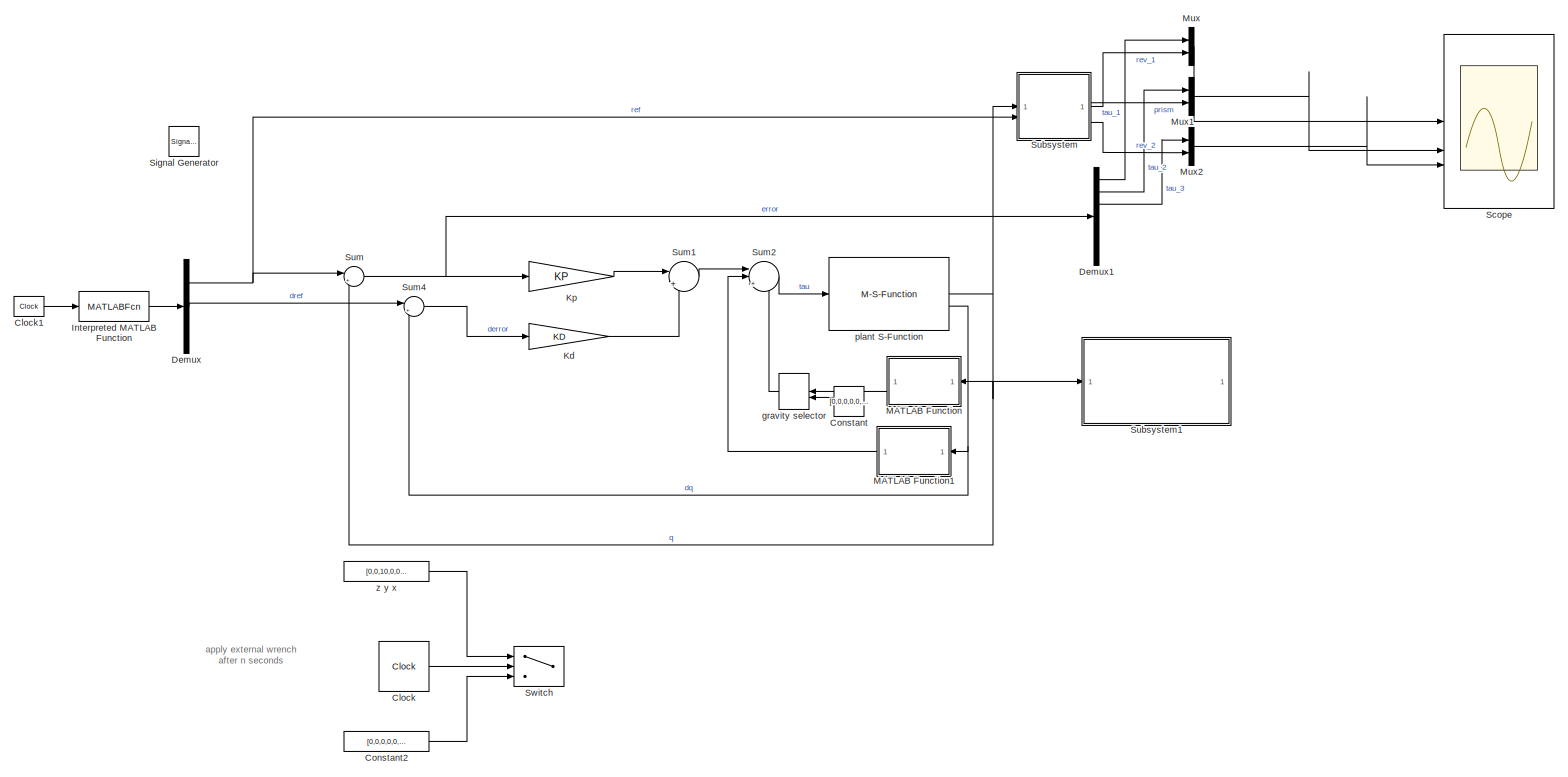
[diagram: root canvas - part 1/1, most of the canvas]
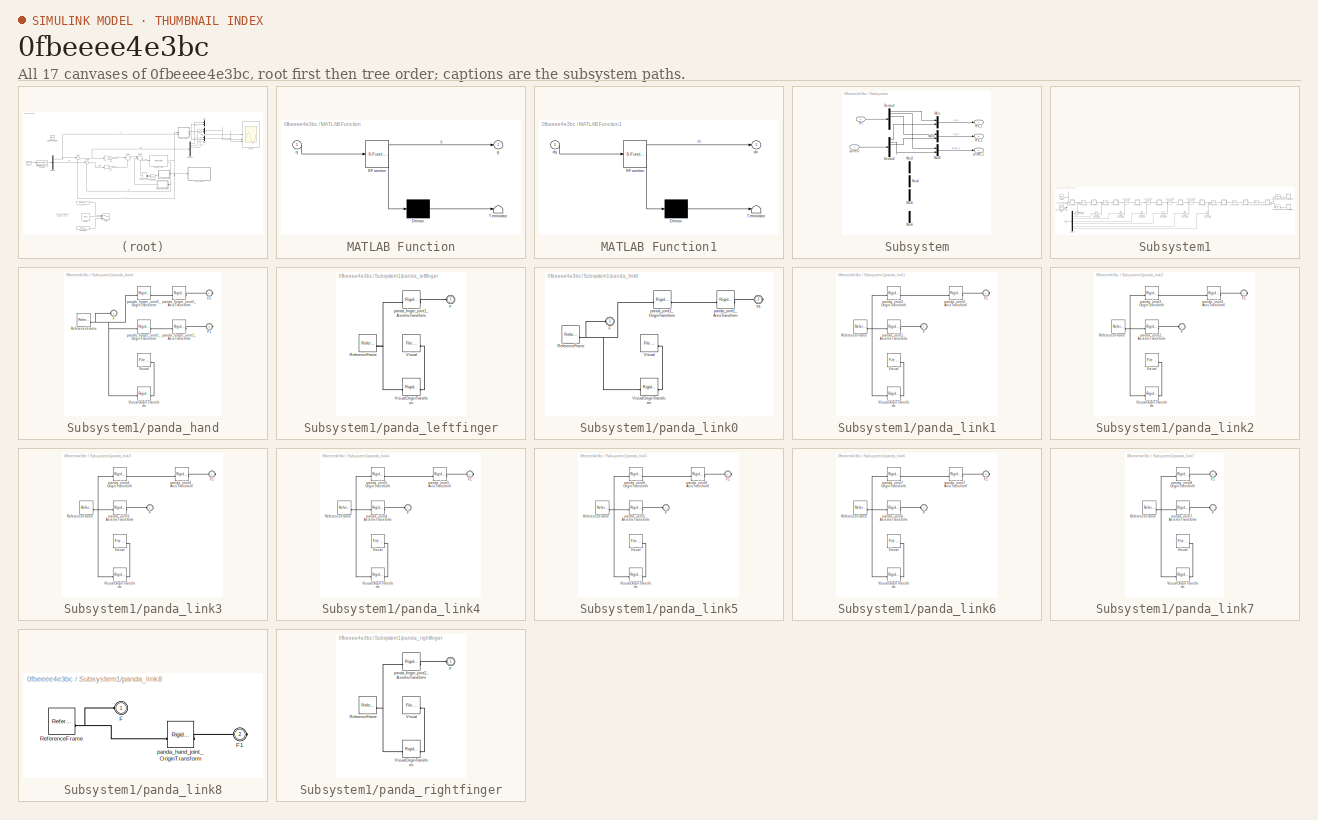
[diagram: thumbnail index - all 17 canvases of the model, root first then tree order]
MODEL slx_0fbeeee4e3bc
KIND model
CONFIG AbsTol = auto
CONFIG EnableMultiTasking = off
CONFIG FixedStep = 0.0001
CONFIG MaxStep = 0.1
CONFIG MinStep = auto
CONFIG RelTol = auto
CONFIG SampleTimeConstraint = Unconstrained
CONFIG SolverName = VariableStepAuto
CONFIG StartTime = 0.0
CONFIG StopTime = 10
WORKSPACE source: mxarray member
WORKSPACE Var = 0
BLOCK [Clock] Clock
  DisplayTime = on
BLOCK [Clock] Clock1
  DisplayTime = on
BLOCK [Constant] Constant
  NameLocation = top
  Value = [0,0,0,0,0,0,0]'
BLOCK [Constant] Constant2
  Value = [0,0,0,0,0,0]'
BLOCK [Demux] Demux
  Outputs = 3
BLOCK [Demux] Demux1
  Commented = on
  Outputs = 7
BLOCK [MATLABFcn] Interpreted MATLAB Function
  MATLABFcn = traj(u)
BLOCK [Gain] Kd
  Gain = KD
BLOCK [Gain] Kp
  Gain = KP
BLOCK [SubSystem] MATLAB Function
  ErrorFcn = Stateflow.Translate.translate
  NameLocation = top
  PermitHierarchicalResolution = ExplicitOnly
  SFBlockType = MATLAB Function
  TreatAsAtomicUnit = on
BLOCK [Demux] MATLAB Function/ Demux 
  Outputs = 1
BLOCK [S-Function] MATLAB Function/ SFunction 
  EnableBusSupport = on
  FunctionName = sf_sfun
  PortCounts = [1 2]
  SFcnIsStateOwnerBlock = off
  SFunctionDeploymentMode = off
  Tag = Stateflow S-Function 2
BLOCK [Terminator] MATLAB Function/ Terminator 
BLOCK [Outport] MATLAB Function/g
BLOCK [Inport] MATLAB Function/q
BLOCK [SubSystem] MATLAB Function1
  ErrorFcn = Stateflow.Translate.translate
  NameLocation = top
  PermitHierarchicalResolution = ExplicitOnly
  SFBlockType = MATLAB Function
  TreatAsAtomicUnit = on
BLOCK [Demux] MATLAB Function1/ Demux 
  Outputs = 1
BLOCK [S-Function] MATLAB Function1/ SFunction 
  EnableBusSupport = on
  FunctionName = sf_sfun
  PortCounts = [1 2]
  SFcnIsStateOwnerBlock = off
  SFunctionDeploymentMode = off
  Tag = Stateflow S-Function 1
BLOCK [Terminator] MATLAB Function1/ Terminator 
BLOCK [Inport] MATLAB Function1/dq
BLOCK [Outport] MATLAB Function1/dx
BLOCK [Mux] Mux
  Commented = on
  DisplayOption = bar
  Inputs = 2
BLOCK [Mux] Mux1
  Commented = on
  DisplayOption = bar
  Inputs = 2
BLOCK [Mux] Mux2
  Commented = on
  DisplayOption = bar
  Inputs = 2
BLOCK [Scope] Scope
  Commented = on
  Floating = off
  NumInputPorts = 7
  ScopeSpecificationString = Simulink.scopes.TimeScopeBlockCfg('CurrentConfiguration', extmgr.ConfigurationSet(extmgr.Configuration('Core','General UI',true),extmgr.Configuration('Core','Source UI',true),extmgr.Configuration('Sources','WiredSimulink',true),extmgr.Configuration('Visuals','Time Domain',true,'SerializedDisplays',{struct('MinYLimReal','-0.33672','MaxYLimReal','1.70349','YLabelReal','','MinYLimMag','0.00000','MaxY...<+7091ch>
BLOCK [SignalGenerator] Signal Generator
  Amplitude = [1,0.2,2]
  Frequency = [0.5,1,1]
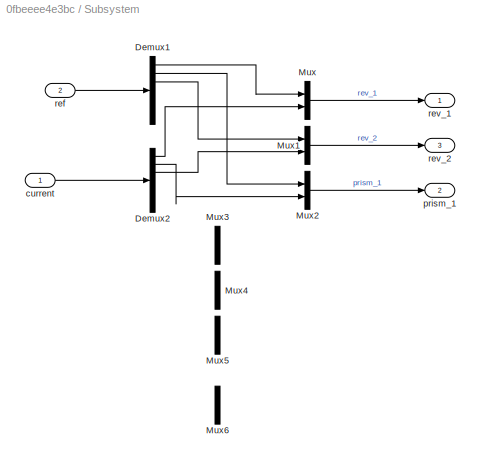
BLOCK [SubSystem] Subsystem
  Commented = on
BLOCK [Demux] Subsystem/Demux1
  Outputs = 7
BLOCK [Demux] Subsystem/Demux2
  Outputs = 7
BLOCK [Mux] Subsystem/Mux
  DisplayOption = bar
  Inputs = 2
BLOCK [Mux] Subsystem/Mux1
  DisplayOption = bar
  Inputs = 2
BLOCK [Mux] Subsystem/Mux2
  DisplayOption = bar
  Inputs = 2
BLOCK [Mux] Subsystem/Mux3
  DisplayOption = bar
  Inputs = 2
BLOCK [Mux] Subsystem/Mux4
  DisplayOption = bar
  Inputs = 2
BLOCK [Mux] Subsystem/Mux5
  DisplayOption = bar
  Inputs = 2
BLOCK [Mux] Subsystem/Mux6
  DisplayOption = bar
  Inputs = 2
BLOCK [Inport] Subsystem/current
BLOCK [Outport] Subsystem/prism_1
  Port = 2
BLOCK [Inport] Subsystem/ref
  Port = 2
BLOCK [Outport] Subsystem/rev_1
BLOCK [Outport] Subsystem/rev_2
  Port = 3
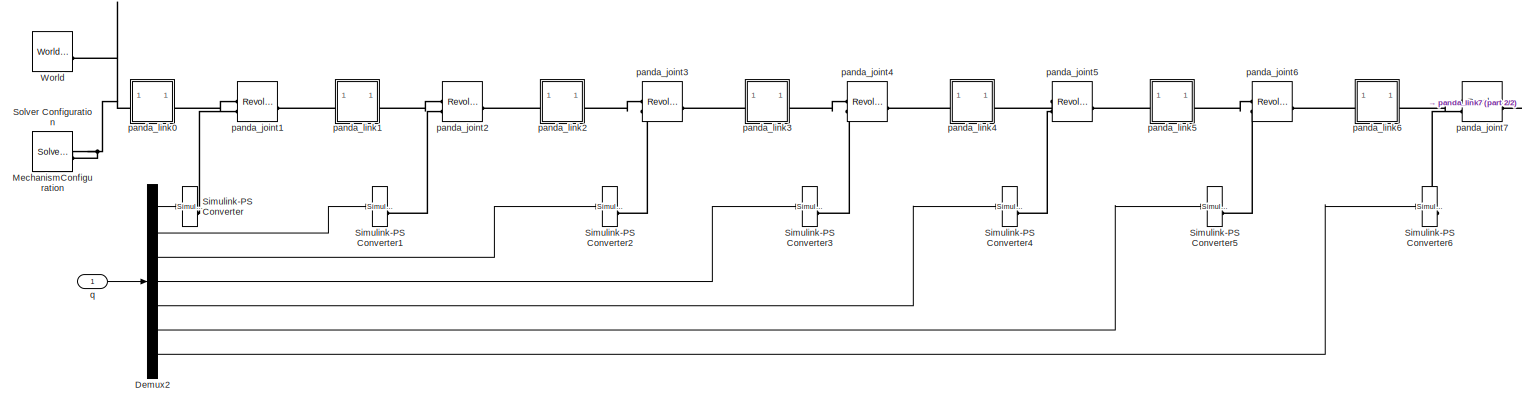
[diagram: Subsystem1 - part 1/2, center side, full height]
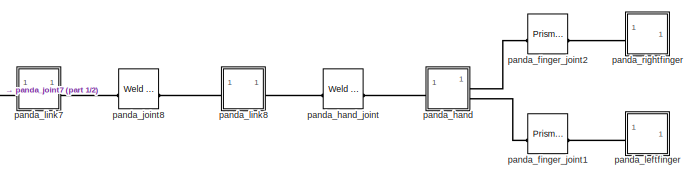
[diagram: Subsystem1 - part 2/2, top right region]
BLOCK [SubSystem] Subsystem1
BLOCK [Demux] Subsystem1/Demux2
  Outputs = 7
BLOCK [Reference] Subsystem1/MechanismConfiguration  REF=sm_lib/Utilities/Mechanism
Configuration
  SourceBlock = sm_lib/Utilities/Mechanism\nConfiguration
  SourceType = Mechanism\nConfiguration
BLOCK [Reference] Subsystem1/Simulink-PS Converter  REF=nesl_utility/Simulink-PS
Converter
  SourceBlock = nesl_utility/Simulink-PS\nConverter
  SourceType = Simulink-PS\nConverter
BLOCK [Reference] Subsystem1/Simulink-PS Converter1  REF=nesl_utility/Simulink-PS
Converter
  SourceBlock = nesl_utility/Simulink-PS\nConverter
  SourceType = Simulink-PS\nConverter
BLOCK [Reference] Subsystem1/Simulink-PS Converter2  REF=nesl_utility/Simulink-PS
Converter
  SourceBlock = nesl_utility/Simulink-PS\nConverter
  SourceType = Simulink-PS\nConverter
BLOCK [Reference] Subsystem1/Simulink-PS Converter3  REF=nesl_utility/Simulink-PS
Converter
  SourceBlock = nesl_utility/Simulink-PS\nConverter
  SourceType = Simulink-PS\nConverter
BLOCK [Reference] Subsystem1/Simulink-PS Converter4  REF=nesl_utility/Simulink-PS
Converter
  SourceBlock = nesl_utility/Simulink-PS\nConverter
  SourceType = Simulink-PS\nConverter
BLOCK [Reference] Subsystem1/Simulink-PS Converter5  REF=nesl_utility/Simulink-PS
Converter
  SourceBlock = nesl_utility/Simulink-PS\nConverter
  SourceType = Simulink-PS\nConverter
BLOCK [Reference] Subsystem1/Simulink-PS Converter6  REF=nesl_utility/Simulink-PS
Converter
  SourceBlock = nesl_utility/Simulink-PS\nConverter
  SourceType = Simulink-PS\nConverter
BLOCK [Reference] Subsystem1/Solver Configuration  REF=nesl_utility/Solver
Configuration
  SourceBlock = nesl_utility/Solver\nConfiguration
  SourceType = Solver\nConfiguration
BLOCK [Reference] Subsystem1/World  REF=sm_lib/Frames and
Transforms/World Frame
  SourceBlock = sm_lib/Frames and\nTransforms/World Frame
  SourceType = World Frame
BLOCK [Reference] Subsystem1/panda_finger_joint1  REF=sm_lib/Joints/Prismatic
Joint
  Commented = on
  SourceBlock = sm_lib/Joints/Prismatic\nJoint
  SourceType = Prismatic\nJoint
BLOCK [Reference] Subsystem1/panda_finger_joint2  REF=sm_lib/Joints/Prismatic
Joint
  Commented = on
  SourceBlock = sm_lib/Joints/Prismatic\nJoint
  SourceType = Prismatic\nJoint
BLOCK [SubSystem] Subsystem1/panda_hand
  Commented = on
BLOCK [PMIOPort] Subsystem1/panda_hand/F
  Side = Left
BLOCK [PMIOPort] Subsystem1/panda_hand/F1
  Port = 3
  Side = Right
BLOCK [PMIOPort] Subsystem1/panda_hand/F2
  Port = 2
  Side = Right
BLOCK [Reference] Subsystem1/panda_hand/ReferenceFrame  REF=sm_lib/Frames and
Transforms/Reference
Frame
  SourceBlock = sm_lib/Frames and\nTransforms/Reference\nFrame
  SourceType = Reference\nFrame
BLOCK [Reference] Subsystem1/panda_hand/Visual  REF=sm_lib/Body Elements/File Solid
  SourceBlock = sm_lib/Body Elements/File Solid
  SourceType = File Solid
BLOCK [Reference] Subsystem1/panda_hand/VisualOriginTransform  REF=sm_lib/Frames and
Transforms/Rigid
Transform
  SourceBlock = sm_lib/Frames and\nTransforms/Rigid\nTransform
  SourceType = Rigid\nTransform
BLOCK [Reference] Subsystem1/panda_hand/panda_finger_joint1_AxisTransform  REF=sm_lib/Frames and
Transforms/Rigid
Transform
  SourceBlock = sm_lib/Frames and\nTransforms/Rigid\nTransform
  SourceType = Rigid\nTransform
BLOCK [Reference] Subsystem1/panda_hand/panda_finger_joint1_OriginTransform  REF=sm_lib/Frames and
Transforms/Rigid
Transform
  SourceBlock = sm_lib/Frames and\nTransforms/Rigid\nTransform
  SourceType = Rigid\nTransform
BLOCK [Reference] Subsystem1/panda_hand/panda_finger_joint2_AxisTransform  REF=sm_lib/Frames and
Transforms/Rigid
Transform
  SourceBlock = sm_lib/Frames and\nTransforms/Rigid\nTransform
  SourceType = Rigid\nTransform
BLOCK [Reference] Subsystem1/panda_hand/panda_finger_joint2_OriginTransform  REF=sm_lib/Frames and
Transforms/Rigid
Transform
  SourceBlock = sm_lib/Frames and\nTransforms/Rigid\nTransform
  SourceType = Rigid\nTransform
BLOCK [Reference] Subsystem1/panda_hand_joint  REF=sm_lib/Joints/Weld Joint
  Commented = on
  SourceBlock = sm_lib/Joints/Weld Joint
  SourceType = Weld Joint
BLOCK [Reference] Subsystem1/panda_joint1  REF=sm_lib/Joints/Revolute Joint
  SourceBlock = sm_lib/Joints/Revolute Joint
  SourceType = Revolute Joint
BLOCK [Reference] Subsystem1/panda_joint2  REF=sm_lib/Joints/Revolute Joint
  SourceBlock = sm_lib/Joints/Revolute Joint
  SourceType = Revolute Joint
BLOCK [Reference] Subsystem1/panda_joint3  REF=sm_lib/Joints/Revolute Joint
  SourceBlock = sm_lib/Joints/Revolute Joint
  SourceType = Revolute Joint
BLOCK [Reference] Subsystem1/panda_joint4  REF=sm_lib/Joints/Revolute Joint
  SourceBlock = sm_lib/Joints/Revolute Joint
  SourceType = Revolute Joint
BLOCK [Reference] Subsystem1/panda_joint5  REF=sm_lib/Joints/Revolute Joint
  SourceBlock = sm_lib/Joints/Revolute Joint
  SourceType = Revolute Joint
BLOCK [Reference] Subsystem1/panda_joint6  REF=sm_lib/Joints/Revolute Joint
  SourceBlock = sm_lib/Joints/Revolute Joint
  SourceType = Revolute Joint
BLOCK [Reference] Subsystem1/panda_joint7  REF=sm_lib/Joints/Revolute Joint
  SourceBlock = sm_lib/Joints/Revolute Joint
  SourceType = Revolute Joint
BLOCK [Reference] Subsystem1/panda_joint8  REF=sm_lib/Joints/Weld Joint
  Commented = on
  SourceBlock = sm_lib/Joints/Weld Joint
  SourceType = Weld Joint
BLOCK [SubSystem] Subsystem1/panda_leftfinger
  Commented = on
BLOCK [PMIOPort] Subsystem1/panda_leftfinger/F
  Side = Left
BLOCK [Reference] Subsystem1/panda_leftfinger/ReferenceFrame  REF=sm_lib/Frames and
Transforms/Reference
Frame
  SourceBlock = sm_lib/Frames and\nTransforms/Reference\nFrame
  SourceType = Reference\nFrame
BLOCK [Reference] Subsystem1/panda_leftfinger/Visual  REF=sm_lib/Body Elements/File Solid
  SourceBlock = sm_lib/Body Elements/File Solid
  SourceType = File Solid
BLOCK [Reference] Subsystem1/panda_leftfinger/VisualOriginTransform  REF=sm_lib/Frames and
Transforms/Rigid
Transform
  SourceBlock = sm_lib/Frames and\nTransforms/Rigid\nTransform
  SourceType = Rigid\nTransform
BLOCK [Reference] Subsystem1/panda_leftfinger/panda_finger_joint1_AxisInvTransform  REF=sm_lib/Frames and
Transforms/Rigid
Transform
  SourceBlock = sm_lib/Frames and\nTransforms/Rigid\nTransform
  SourceType = Rigid\nTransform
BLOCK [SubSystem] Subsystem1/panda_link0
BLOCK [PMIOPort] Subsystem1/panda_link0/F
  Side = Left
BLOCK [PMIOPort] Subsystem1/panda_link0/F1
  Port = 2
  Side = Right
BLOCK [Reference] Subsystem1/panda_link0/ReferenceFrame  REF=sm_lib/Frames and
Transforms/Reference
Frame
  SourceBlock = sm_lib/Frames and\nTransforms/Reference\nFrame
  SourceType = Reference\nFrame
BLOCK [Reference] Subsystem1/panda_link0/Visual  REF=sm_lib/Body Elements/File Solid
  SourceBlock = sm_lib/Body Elements/File Solid
  SourceType = File Solid
BLOCK [Reference] Subsystem1/panda_link0/VisualOriginTransform  REF=sm_lib/Frames and
Transforms/Rigid
Transform
  SourceBlock = sm_lib/Frames and\nTransforms/Rigid\nTransform
  SourceType = Rigid\nTransform
BLOCK [Reference] Subsystem1/panda_link0/panda_joint1_AxisTransform  REF=sm_lib/Frames and
Transforms/Rigid
Transform
  SourceBlock = sm_lib/Frames and\nTransforms/Rigid\nTransform
  SourceType = Rigid\nTransform
BLOCK [Reference] Subsystem1/panda_link0/panda_joint1_OriginTransform  REF=sm_lib/Frames and
Transforms/Rigid
Transform
  SourceBlock = sm_lib/Frames and\nTransforms/Rigid\nTransform
  SourceType = Rigid\nTransform
BLOCK [SubSystem] Subsystem1/panda_link1
BLOCK [PMIOPort] Subsystem1/panda_link1/F
  Side = Left
BLOCK [PMIOPort] Subsystem1/panda_link1/F1
  Port = 2
  Side = Right
BLOCK [Reference] Subsystem1/panda_link1/ReferenceFrame  REF=sm_lib/Frames and
Transforms/Reference
Frame
  SourceBlock = sm_lib/Frames and\nTransforms/Reference\nFrame
  SourceType = Reference\nFrame
BLOCK [Reference] Subsystem1/panda_link1/Visual  REF=sm_lib/Body Elements/File Solid
  SourceBlock = sm_lib/Body Elements/File Solid
  SourceType = File Solid
BLOCK [Reference] Subsystem1/panda_link1/VisualOriginTransform  REF=sm_lib/Frames and
Transforms/Rigid
Transform
  SourceBlock = sm_lib/Frames and\nTransforms/Rigid\nTransform
  SourceType = Rigid\nTransform
BLOCK [Reference] Subsystem1/panda_link1/panda_joint1_AxisInvTransform  REF=sm_lib/Frames and
Transforms/Rigid
Transform
  SourceBlock = sm_lib/Frames and\nTransforms/Rigid\nTransform
  SourceType = Rigid\nTransform
BLOCK [Reference] Subsystem1/panda_link1/panda_joint2_AxisTransform  REF=sm_lib/Frames and
Transforms/Rigid
Transform
  SourceBlock = sm_lib/Frames and\nTransforms/Rigid\nTransform
  SourceType = Rigid\nTransform
BLOCK [Reference] Subsystem1/panda_link1/panda_joint2_OriginTransform  REF=sm_lib/Frames and
Transforms/Rigid
Transform
  SourceBlock = sm_lib/Frames and\nTransforms/Rigid\nTransform
  SourceType = Rigid\nTransform
BLOCK [SubSystem] Subsystem1/panda_link2
BLOCK [PMIOPort] Subsystem1/panda_link2/F
  Side = Left
BLOCK [PMIOPort] Subsystem1/panda_link2/F1
  Port = 2
  Side = Right
BLOCK [Reference] Subsystem1/panda_link2/ReferenceFrame  REF=sm_lib/Frames and
Transforms/Reference
Frame
  SourceBlock = sm_lib/Frames and\nTransforms/Reference\nFrame
  SourceType = Reference\nFrame
BLOCK [Reference] Subsystem1/panda_link2/Visual  REF=sm_lib/Body Elements/File Solid
  SourceBlock = sm_lib/Body Elements/File Solid
  SourceType = File Solid
BLOCK [Reference] Subsystem1/panda_link2/VisualOriginTransform  REF=sm_lib/Frames and
Transforms/Rigid
Transform
  SourceBlock = sm_lib/Frames and\nTransforms/Rigid\nTransform
  SourceType = Rigid\nTransform
BLOCK [Reference] Subsystem1/panda_link2/panda_joint2_AxisInvTransform  REF=sm_lib/Frames and
Transforms/Rigid
Transform
  SourceBlock = sm_lib/Frames and\nTransforms/Rigid\nTransform
  SourceType = Rigid\nTransform
BLOCK [Reference] Subsystem1/panda_link2/panda_joint3_AxisTransform  REF=sm_lib/Frames and
Transforms/Rigid
Transform
  SourceBlock = sm_lib/Frames and\nTransforms/Rigid\nTransform
  SourceType = Rigid\nTransform
BLOCK [Reference] Subsystem1/panda_link2/panda_joint3_OriginTransform  REF=sm_lib/Frames and
Transforms/Rigid
Transform
  SourceBlock = sm_lib/Frames and\nTransforms/Rigid\nTransform
  SourceType = Rigid\nTransform
BLOCK [SubSystem] Subsystem1/panda_link3
BLOCK [PMIOPort] Subsystem1/panda_link3/F
  Side = Left
BLOCK [PMIOPort] Subsystem1/panda_link3/F1
  Port = 2
  Side = Right
BLOCK [Reference] Subsystem1/panda_link3/ReferenceFrame  REF=sm_lib/Frames and
Transforms/Reference
Frame
  SourceBlock = sm_lib/Frames and\nTransforms/Reference\nFrame
  SourceType = Reference\nFrame
BLOCK [Reference] Subsystem1/panda_link3/Visual  REF=sm_lib/Body Elements/File Solid
  SourceBlock = sm_lib/Body Elements/File Solid
  SourceType = File Solid
BLOCK [Reference] Subsystem1/panda_link3/VisualOriginTransform  REF=sm_lib/Frames and
Transforms/Rigid
Transform
  SourceBlock = sm_lib/Frames and\nTransforms/Rigid\nTransform
  SourceType = Rigid\nTransform
BLOCK [Reference] Subsystem1/panda_link3/panda_joint3_AxisInvTransform  REF=sm_lib/Frames and
Transforms/Rigid
Transform
  SourceBlock = sm_lib/Frames and\nTransforms/Rigid\nTransform
  SourceType = Rigid\nTransform
BLOCK [Reference] Subsystem1/panda_link3/panda_joint4_AxisTransform  REF=sm_lib/Frames and
Transforms/Rigid
Transform
  SourceBlock = sm_lib/Frames and\nTransforms/Rigid\nTransform
  SourceType = Rigid\nTransform
BLOCK [Reference] Subsystem1/panda_link3/panda_joint4_OriginTransform  REF=sm_lib/Frames and
Transforms/Rigid
Transform
  SourceBlock = sm_lib/Frames and\nTransforms/Rigid\nTransform
  SourceType = Rigid\nTransform
BLOCK [SubSystem] Subsystem1/panda_link4
BLOCK [PMIOPort] Subsystem1/panda_link4/F
  Side = Left
BLOCK [PMIOPort] Subsystem1/panda_link4/F1
  Port = 2
  Side = Right
BLOCK [Reference] Subsystem1/panda_link4/ReferenceFrame  REF=sm_lib/Frames and
Transforms/Reference
Frame
  SourceBlock = sm_lib/Frames and\nTransforms/Reference\nFrame
  SourceType = Reference\nFrame
BLOCK [Reference] Subsystem1/panda_link4/Visual  REF=sm_lib/Body Elements/File Solid
  SourceBlock = sm_lib/Body Elements/File Solid
  SourceType = File Solid
BLOCK [Reference] Subsystem1/panda_link4/VisualOriginTransform  REF=sm_lib/Frames and
Transforms/Rigid
Transform
  SourceBlock = sm_lib/Frames and\nTransforms/Rigid\nTransform
  SourceType = Rigid\nTransform
BLOCK [Reference] Subsystem1/panda_link4/panda_joint4_AxisInvTransform  REF=sm_lib/Frames and
Transforms/Rigid
Transform
  SourceBlock = sm_lib/Frames and\nTransforms/Rigid\nTransform
  SourceType = Rigid\nTransform
BLOCK [Reference] Subsystem1/panda_link4/panda_joint5_AxisTransform  REF=sm_lib/Frames and
Transforms/Rigid
Transform
  SourceBlock = sm_lib/Frames and\nTransforms/Rigid\nTransform
  SourceType = Rigid\nTransform
BLOCK [Reference] Subsystem1/panda_link4/panda_joint5_OriginTransform  REF=sm_lib/Frames and
Transforms/Rigid
Transform
  SourceBlock = sm_lib/Frames and\nTransforms/Rigid\nTransform
  SourceType = Rigid\nTransform
BLOCK [SubSystem] Subsystem1/panda_link5
BLOCK [PMIOPort] Subsystem1/panda_link5/F
  Side = Left
BLOCK [PMIOPort] Subsystem1/panda_link5/F1
  Port = 2
  Side = Right
BLOCK [Reference] Subsystem1/panda_link5/ReferenceFrame  REF=sm_lib/Frames and
Transforms/Reference
Frame
  SourceBlock = sm_lib/Frames and\nTransforms/Reference\nFrame
  SourceType = Reference\nFrame
BLOCK [Reference] Subsystem1/panda_link5/Visual  REF=sm_lib/Body Elements/File Solid
  SourceBlock = sm_lib/Body Elements/File Solid
  SourceType = File Solid
BLOCK [Reference] Subsystem1/panda_link5/VisualOriginTransform  REF=sm_lib/Frames and
Transforms/Rigid
Transform
  SourceBlock = sm_lib/Frames and\nTransforms/Rigid\nTransform
  SourceType = Rigid\nTransform
BLOCK [Reference] Subsystem1/panda_link5/panda_joint5_AxisInvTransform  REF=sm_lib/Frames and
Transforms/Rigid
Transform
  SourceBlock = sm_lib/Frames and\nTransforms/Rigid\nTransform
  SourceType = Rigid\nTransform
BLOCK [Reference] Subsystem1/panda_link5/panda_joint6_AxisTransform  REF=sm_lib/Frames and
Transforms/Rigid
Transform
  SourceBlock = sm_lib/Frames and\nTransforms/Rigid\nTransform
  SourceType = Rigid\nTransform
BLOCK [Reference] Subsystem1/panda_link5/panda_joint6_OriginTransform  REF=sm_lib/Frames and
Transforms/Rigid
Transform
  SourceBlock = sm_lib/Frames and\nTransforms/Rigid\nTransform
  SourceType = Rigid\nTransform
BLOCK [SubSystem] Subsystem1/panda_link6
BLOCK [PMIOPort] Subsystem1/panda_link6/F
  Side = Left
BLOCK [PMIOPort] Subsystem1/panda_link6/F1
  Port = 2
  Side = Right
BLOCK [Reference] Subsystem1/panda_link6/ReferenceFrame  REF=sm_lib/Frames and
Transforms/Reference
Frame
  SourceBlock = sm_lib/Frames and\nTransforms/Reference\nFrame
  SourceType = Reference\nFrame
BLOCK [Reference] Subsystem1/panda_link6/Visual  REF=sm_lib/Body Elements/File Solid
  SourceBlock = sm_lib/Body Elements/File Solid
  SourceType = File Solid
BLOCK [Reference] Subsystem1/panda_link6/VisualOriginTransform  REF=sm_lib/Frames and
Transforms/Rigid
Transform
  SourceBlock = sm_lib/Frames and\nTransforms/Rigid\nTransform
  SourceType = Rigid\nTransform
BLOCK [Reference] Subsystem1/panda_link6/panda_joint6_AxisInvTransform  REF=sm_lib/Frames and
Transforms/Rigid
Transform
  SourceBlock = sm_lib/Frames and\nTransforms/Rigid\nTransform
  SourceType = Rigid\nTransform
BLOCK [Reference] Subsystem1/panda_link6/panda_joint7_AxisTransform  REF=sm_lib/Frames and
Transforms/Rigid
Transform
  SourceBlock = sm_lib/Frames and\nTransforms/Rigid\nTransform
  SourceType = Rigid\nTransform
BLOCK [Reference] Subsystem1/panda_link6/panda_joint7_OriginTransform  REF=sm_lib/Frames and
Transforms/Rigid
Transform
  SourceBlock = sm_lib/Frames and\nTransforms/Rigid\nTransform
  SourceType = Rigid\nTransform
BLOCK [SubSystem] Subsystem1/panda_link7
BLOCK [PMIOPort] Subsystem1/panda_link7/F
  Side = Left
BLOCK [PMIOPort] Subsystem1/panda_link7/F1
  Port = 2
  Side = Right
BLOCK [Reference] Subsystem1/panda_link7/ReferenceFrame  REF=sm_lib/Frames and
Transforms/Reference
Frame
  SourceBlock = sm_lib/Frames and\nTransforms/Reference\nFrame
  SourceType = Reference\nFrame
BLOCK [Reference] Subsystem1/panda_link7/Visual  REF=sm_lib/Body Elements/File Solid
  SourceBlock = sm_lib/Body Elements/File Solid
  SourceType = File Solid
BLOCK [Reference] Subsystem1/panda_link7/VisualOriginTransform  REF=sm_lib/Frames and
Transforms/Rigid
Transform
  SourceBlock = sm_lib/Frames and\nTransforms/Rigid\nTransform
  SourceType = Rigid\nTransform
BLOCK [Reference] Subsystem1/panda_link7/panda_joint7_AxisInvTransform  REF=sm_lib/Frames and
Transforms/Rigid
Transform
  SourceBlock = sm_lib/Frames and\nTransforms/Rigid\nTransform
  SourceType = Rigid\nTransform
BLOCK [Reference] Subsystem1/panda_link7/panda_joint8_OriginTransform  REF=sm_lib/Frames and
Transforms/Rigid
Transform
  SourceBlock = sm_lib/Frames and\nTransforms/Rigid\nTransform
  SourceType = Rigid\nTransform
BLOCK [SubSystem] Subsystem1/panda_link8
  Commented = on
BLOCK [PMIOPort] Subsystem1/panda_link8/F
  Side = Left
BLOCK [PMIOPort] Subsystem1/panda_link8/F1
  Port = 2
  Side = Right
BLOCK [Reference] Subsystem1/panda_link8/ReferenceFrame  REF=sm_lib/Frames and
Transforms/Reference
Frame
  SourceBlock = sm_lib/Frames and\nTransforms/Reference\nFrame
  SourceType = Reference\nFrame
BLOCK [Reference] Subsystem1/panda_link8/panda_hand_joint_OriginTransform  REF=sm_lib/Frames and
Transforms/Rigid
Transform
  SourceBlock = sm_lib/Frames and\nTransforms/Rigid\nTransform
  SourceType = Rigid\nTransform
BLOCK [SubSystem] Subsystem1/panda_rightfinger
  Commented = on
BLOCK [PMIOPort] Subsystem1/panda_rightfinger/F
  Side = Left
BLOCK [Reference] Subsystem1/panda_rightfinger/ReferenceFrame  REF=sm_lib/Frames and
Transforms/Reference
Frame
  SourceBlock = sm_lib/Frames and\nTransforms/Reference\nFrame
  SourceType = Reference\nFrame
BLOCK [Reference] Subsystem1/panda_rightfinger/Visual  REF=sm_lib/Body Elements/File Solid
  SourceBlock = sm_lib/Body Elements/File Solid
  SourceType = File Solid
BLOCK [Reference] Subsystem1/panda_rightfinger/VisualOriginTransform  REF=sm_lib/Frames and
Transforms/Rigid
Transform
  SourceBlock = sm_lib/Frames and\nTransforms/Rigid\nTransform
  SourceType = Rigid\nTransform
BLOCK [Reference] Subsystem1/panda_rightfinger/panda_finger_joint2_AxisInvTransform  REF=sm_lib/Frames and
Transforms/Rigid
Transform
  SourceBlock = sm_lib/Frames and\nTransforms/Rigid\nTransform
  SourceType = Rigid\nTransform
BLOCK [Inport] Subsystem1/q
BLOCK [Sum] Sum
  Inputs = |+-
BLOCK [Sum] Sum1
  Inputs = ||+|+
BLOCK [Sum] Sum2
  Inputs = ||+++
BLOCK [Sum] Sum4
  Inputs = |+-
BLOCK [Switch] Switch
  Criteria = u2 > Threshold
  InputSameDT = off
  SaturateOnIntegerOverflow = off
  Threshold = 5
BLOCK [ManualSwitch] gravity selector
BLOCK [M-S-Function] plant S-Function
  FunctionName = franka_robot_s_function
  Parameters = arg_1,arg_2
BLOCK [Constant] z y x
  Value = [0,0,10,0,0,5]'
ANNOTATION (root): apply external wrench after n seconds
LINE Clock1:1 -> Interpreted MATLAB Function:1
LINE Clock:1 -> Switch:2
LINE Constant2:1 -> Switch:3
LINE Constant:1 -> gravity selector:2
LINE Demux1:1 -> Mux:1
LINE Demux1:2 -> Mux1:1
LINE Demux1:3 -> Mux2:1
NET Demux:1 -> Subsystem:2, Sum:1
LINE Demux:2 -> Sum4:1
LINE Interpreted MATLAB Function:1 -> Demux:1
LINE Kd:1 -> Sum1:2
LINE Kp:1 -> Sum1:1
LINE MATLAB Function1:1 -> Sum2:2
LINE MATLAB Function:1 -> gravity selector:1
LINE Mux1:1 -> Scope:2
LINE Mux2:1 -> Scope:3
LINE Mux:1 -> Scope:1
LINE Subsystem/Demux1:1 -> Subsystem/Mux:1
LINE Subsystem/Demux1:2 -> Subsystem/Mux2:1
LINE Subsystem/Demux1:3 -> Subsystem/Mux1:1
LINE Subsystem/Demux2:1 -> Subsystem/Mux:2
LINE Subsystem/Demux2:2 -> Subsystem/Mux2:2
LINE Subsystem/Demux2:3 -> Subsystem/Mux1:2
LINE Subsystem/Mux1:1 -> Subsystem/rev_2:1
LINE Subsystem/Mux2:1 -> Subsystem/prism_1:1
LINE Subsystem/Mux:1 -> Subsystem/rev_1:1
LINE Subsystem/current:1 -> Subsystem/Demux2:1
LINE Subsystem/ref:1 -> Subsystem/Demux1:1
LINE Subsystem1/Demux2:1 -> Subsystem1/Simulink-PS Converter:1
LINE Subsystem1/Demux2:2 -> Subsystem1/Simulink-PS Converter1:1
LINE Subsystem1/Demux2:3 -> Subsystem1/Simulink-PS Converter2:1
LINE Subsystem1/Demux2:4 -> Subsystem1/Simulink-PS Converter3:1
LINE Subsystem1/Demux2:5 -> Subsystem1/Simulink-PS Converter4:1
LINE Subsystem1/Demux2:6 -> Subsystem1/Simulink-PS Converter5:1
LINE Subsystem1/Demux2:7 -> Subsystem1/Simulink-PS Converter6:1
LINE Subsystem1/q:1 -> Subsystem1/Demux2:1
LINE Subsystem:1 -> Mux:2
LINE Subsystem:2 -> Mux1:2
LINE Subsystem:3 -> Mux2:2
LINE Sum1:1 -> Sum2:1
LINE Sum2:1 -> plant S-Function:1
LINE Sum4:1 -> Kd:1
NET Sum:1 -> Demux1:1, Kp:1
LINE gravity selector:1 -> Sum2:3
NET plant S-Function:1 -> MATLAB Function:1, Subsystem1:1, Subsystem:1, Sum:2
NET plant S-Function:2 -> MATLAB Function1:1, Sum4:2
LINE z y x:1 -> Switch:1
PNET net1: Subsystem1/MechanismConfiguration:RConn1 -- Subsystem1/Solver Configuration:RConn1 -- Subsystem1/World:RConn1 -- Subsystem1/panda_link0:LConn1
PLINE Subsystem1/Simulink-PS Converter1:RConn1 -- Subsystem1/panda_joint2:LConn2
PLINE Subsystem1/Simulink-PS Converter2:RConn1 -- Subsystem1/panda_joint3:LConn2
PLINE Subsystem1/Simulink-PS Converter3:RConn1 -- Subsystem1/panda_joint4:LConn2
PLINE Subsystem1/Simulink-PS Converter4:RConn1 -- Subsystem1/panda_joint5:LConn2
PLINE Subsystem1/Simulink-PS Converter5:RConn1 -- Subsystem1/panda_joint6:LConn2
PLINE Subsystem1/Simulink-PS Converter6:RConn1 -- Subsystem1/panda_joint7:LConn2
PLINE Subsystem1/Simulink-PS Converter:RConn1 -- Subsystem1/panda_joint1:LConn2
PLINE Subsystem1/panda_finger_joint1:LConn1 -- Subsystem1/panda_hand:RConn2
PLINE Subsystem1/panda_finger_joint1:RConn1 -- Subsystem1/panda_leftfinger:LConn1
PLINE Subsystem1/panda_finger_joint2:LConn1 -- Subsystem1/panda_hand:RConn1
PLINE Subsystem1/panda_finger_joint2:RConn1 -- Subsystem1/panda_rightfinger:LConn1
PLINE Subsystem1/panda_hand/F1:RConn1 -- Subsystem1/panda_hand/panda_finger_joint1_AxisTransform:RConn1
PLINE Subsystem1/panda_hand/F2:RConn1 -- Subsystem1/panda_hand/panda_finger_joint2_AxisTransform:RConn1
PNET net2: Subsystem1/panda_hand/F:RConn1 -- Subsystem1/panda_hand/ReferenceFrame:RConn1 -- Subsystem1/panda_hand/VisualOriginTransform:LConn1 -- Subsystem1/panda_hand/panda_finger_joint1_OriginTransform:LConn1 -- Subsystem1/panda_hand/panda_finger_joint2_OriginTransform:LConn1
PLINE Subsystem1/panda_hand/Visual:RConn1 -- Subsystem1/panda_hand/VisualOriginTransform:RConn1
PLINE Subsystem1/panda_hand/panda_finger_joint1_AxisTransform:LConn1 -- Subsystem1/panda_hand/panda_finger_joint1_OriginTransform:RConn1
PLINE Subsystem1/panda_hand/panda_finger_joint2_AxisTransform:LConn1 -- Subsystem1/panda_hand/panda_finger_joint2_OriginTransform:RConn1
PLINE Subsystem1/panda_hand:LConn1 -- Subsystem1/panda_hand_joint:RConn1
PLINE Subsystem1/panda_hand_joint:LConn1 -- Subsystem1/panda_link8:RConn1
PLINE Subsystem1/panda_joint1:LConn1 -- Subsystem1/panda_link0:RConn1
PLINE Subsystem1/panda_joint1:RConn1 -- Subsystem1/panda_link1:LConn1
PLINE Subsystem1/panda_joint2:LConn1 -- Subsystem1/panda_link1:RConn1
PLINE Subsystem1/panda_joint2:RConn1 -- Subsystem1/panda_link2:LConn1
PLINE Subsystem1/panda_joint3:LConn1 -- Subsystem1/panda_link2:RConn1
PLINE Subsystem1/panda_joint3:RConn1 -- Subsystem1/panda_link3:LConn1
PLINE Subsystem1/panda_joint4:LConn1 -- Subsystem1/panda_link3:RConn1
PLINE Subsystem1/panda_joint4:RConn1 -- Subsystem1/panda_link4:LConn1
PLINE Subsystem1/panda_joint5:LConn1 -- Subsystem1/panda_link4:RConn1
PLINE Subsystem1/panda_joint5:RConn1 -- Subsystem1/panda_link5:LConn1
PLINE Subsystem1/panda_joint6:LConn1 -- Subsystem1/panda_link5:RConn1
PLINE Subsystem1/panda_joint6:RConn1 -- Subsystem1/panda_link6:LConn1
PLINE Subsystem1/panda_joint7:LConn1 -- Subsystem1/panda_link6:RConn1
PLINE Subsystem1/panda_joint7:RConn1 -- Subsystem1/panda_link7:LConn1
PLINE Subsystem1/panda_joint8:LConn1 -- Subsystem1/panda_link7:RConn1
PLINE Subsystem1/panda_joint8:RConn1 -- Subsystem1/panda_link8:LConn1
PLINE Subsystem1/panda_leftfinger/F:RConn1 -- Subsystem1/panda_leftfinger/panda_finger_joint1_AxisInvTransform:RConn1
PNET net3: Subsystem1/panda_leftfinger/ReferenceFrame:RConn1 -- Subsystem1/panda_leftfinger/VisualOriginTransform:LConn1 -- Subsystem1/panda_leftfinger/panda_finger_joint1_AxisInvTransform:LConn1
PLINE Subsystem1/panda_leftfinger/Visual:RConn1 -- Subsystem1/panda_leftfinger/VisualOriginTransform:RConn1
PLINE Subsystem1/panda_link0/F1:RConn1 -- Subsystem1/panda_link0/panda_joint1_AxisTransform:RConn1
PNET net4: Subsystem1/panda_link0/F:RConn1 -- Subsystem1/panda_link0/ReferenceFrame:RConn1 -- Subsystem1/panda_link0/VisualOriginTransform:LConn1 -- Subsystem1/panda_link0/panda_joint1_OriginTransform:LConn1
PLINE Subsystem1/panda_link0/Visual:RConn1 -- Subsystem1/panda_link0/VisualOriginTransform:RConn1
PLINE Subsystem1/panda_link0/panda_joint1_AxisTransform:LConn1 -- Subsystem1/panda_link0/panda_joint1_OriginTransform:RConn1
PLINE Subsystem1/panda_link1/F1:RConn1 -- Subsystem1/panda_link1/panda_joint2_AxisTransform:RConn1
PLINE Subsystem1/panda_link1/F:RConn1 -- Subsystem1/panda_link1/panda_joint1_AxisInvTransform:RConn1
PNET net5: Subsystem1/panda_link1/ReferenceFrame:RConn1 -- Subsystem1/panda_link1/VisualOriginTransform:LConn1 -- Subsystem1/panda_link1/panda_joint1_AxisInvTransform:LConn1 -- Subsystem1/panda_link1/panda_joint2_OriginTransform:LConn1
PLINE Subsystem1/panda_link1/Visual:RConn1 -- Subsystem1/panda_link1/VisualOriginTransform:RConn1
PLINE Subsystem1/panda_link1/panda_joint2_AxisTransform:LConn1 -- Subsystem1/panda_link1/panda_joint2_OriginTransform:RConn1
PLINE Subsystem1/panda_link2/F1:RConn1 -- Subsystem1/panda_link2/panda_joint3_AxisTransform:RConn1
PLINE Subsystem1/panda_link2/F:RConn1 -- Subsystem1/panda_link2/panda_joint2_AxisInvTransform:RConn1
PNET net6: Subsystem1/panda_link2/ReferenceFrame:RConn1 -- Subsystem1/panda_link2/VisualOriginTransform:LConn1 -- Subsystem1/panda_link2/panda_joint2_AxisInvTransform:LConn1 -- Subsystem1/panda_link2/panda_joint3_OriginTransform:LConn1
PLINE Subsystem1/panda_link2/Visual:RConn1 -- Subsystem1/panda_link2/VisualOriginTransform:RConn1
PLINE Subsystem1/panda_link2/panda_joint3_AxisTransform:LConn1 -- Subsystem1/panda_link2/panda_joint3_OriginTransform:RConn1
PLINE Subsystem1/panda_link3/F1:RConn1 -- Subsystem1/panda_link3/panda_joint4_AxisTransform:RConn1
PLINE Subsystem1/panda_link3/F:RConn1 -- Subsystem1/panda_link3/panda_joint3_AxisInvTransform:RConn1
PNET net7: Subsystem1/panda_link3/ReferenceFrame:RConn1 -- Subsystem1/panda_link3/VisualOriginTransform:LConn1 -- Subsystem1/panda_link3/panda_joint3_AxisInvTransform:LConn1 -- Subsystem1/panda_link3/panda_joint4_OriginTransform:LConn1
PLINE Subsystem1/panda_link3/Visual:RConn1 -- Subsystem1/panda_link3/VisualOriginTransform:RConn1
PLINE Subsystem1/panda_link3/panda_joint4_AxisTransform:LConn1 -- Subsystem1/panda_link3/panda_joint4_OriginTransform:RConn1
PLINE Subsystem1/panda_link4/F1:RConn1 -- Subsystem1/panda_link4/panda_joint5_AxisTransform:RConn1
PLINE Subsystem1/panda_link4/F:RConn1 -- Subsystem1/panda_link4/panda_joint4_AxisInvTransform:RConn1
PNET net8: Subsystem1/panda_link4/ReferenceFrame:RConn1 -- Subsystem1/panda_link4/VisualOriginTransform:LConn1 -- Subsystem1/panda_link4/panda_joint4_AxisInvTransform:LConn1 -- Subsystem1/panda_link4/panda_joint5_OriginTransform:LConn1
PLINE Subsystem1/panda_link4/Visual:RConn1 -- Subsystem1/panda_link4/VisualOriginTransform:RConn1
PLINE Subsystem1/panda_link4/panda_joint5_AxisTransform:LConn1 -- Subsystem1/panda_link4/panda_joint5_OriginTransform:RConn1
PLINE Subsystem1/panda_link5/F1:RConn1 -- Subsystem1/panda_link5/panda_joint6_AxisTransform:RConn1
PLINE Subsystem1/panda_link5/F:RConn1 -- Subsystem1/panda_link5/panda_joint5_AxisInvTransform:RConn1
PNET net9: Subsystem1/panda_link5/ReferenceFrame:RConn1 -- Subsystem1/panda_link5/VisualOriginTransform:LConn1 -- Subsystem1/panda_link5/panda_joint5_AxisInvTransform:LConn1 -- Subsystem1/panda_link5/panda_joint6_OriginTransform:LConn1
PLINE Subsystem1/panda_link5/Visual:RConn1 -- Subsystem1/panda_link5/VisualOriginTransform:RConn1
PLINE Subsystem1/panda_link5/panda_joint6_AxisTransform:LConn1 -- Subsystem1/panda_link5/panda_joint6_OriginTransform:RConn1
PLINE Subsystem1/panda_link6/F1:RConn1 -- Subsystem1/panda_link6/panda_joint7_AxisTransform:RConn1
PLINE Subsystem1/panda_link6/F:RConn1 -- Subsystem1/panda_link6/panda_joint6_AxisInvTransform:RConn1
PNET net10: Subsystem1/panda_link6/ReferenceFrame:RConn1 -- Subsystem1/panda_link6/VisualOriginTransform:LConn1 -- Subsystem1/panda_link6/panda_joint6_AxisInvTransform:LConn1 -- Subsystem1/panda_link6/panda_joint7_OriginTransform:LConn1
PLINE Subsystem1/panda_link6/Visual:RConn1 -- Subsystem1/panda_link6/VisualOriginTransform:RConn1
PLINE Subsystem1/panda_link6/panda_joint7_AxisTransform:LConn1 -- Subsystem1/panda_link6/panda_joint7_OriginTransform:RConn1
PLINE Subsystem1/panda_link7/F1:RConn1 -- Subsystem1/panda_link7/panda_joint8_OriginTransform:RConn1
PLINE Subsystem1/panda_link7/F:RConn1 -- Subsystem1/panda_link7/panda_joint7_AxisInvTransform:RConn1
PNET net11: Subsystem1/panda_link7/ReferenceFrame:RConn1 -- Subsystem1/panda_link7/VisualOriginTransform:LConn1 -- Subsystem1/panda_link7/panda_joint7_AxisInvTransform:LConn1 -- Subsystem1/panda_link7/panda_joint8_OriginTransform:LConn1
PLINE Subsystem1/panda_link7/Visual:RConn1 -- Subsystem1/panda_link7/VisualOriginTransform:RConn1
PLINE Subsystem1/panda_link8/F1:RConn1 -- Subsystem1/panda_link8/panda_hand_joint_OriginTransform:RConn1
PNET net12: Subsystem1/panda_link8/F:RConn1 -- Subsystem1/panda_link8/ReferenceFrame:RConn1 -- Subsystem1/panda_link8/panda_hand_joint_OriginTransform:LConn1
PLINE Subsystem1/panda_rightfinger/F:RConn1 -- Subsystem1/panda_rightfinger/panda_finger_joint2_AxisInvTransform:RConn1
PNET net13: Subsystem1/panda_rightfinger/ReferenceFrame:RConn1 -- Subsystem1/panda_rightfinger/VisualOriginTransform:LConn1 -- Subsystem1/panda_rightfinger/panda_finger_joint2_AxisInvTransform:LConn1
PLINE Subsystem1/panda_rightfinger/Visual:RConn1 -- Subsystem1/panda_rightfinger/VisualOriginTransform:RConn1
note: NET lines group one-source signal fan-out (src -> all destinations, sorted); 1:1 wires keep LINE; PNET lines group multi-terminal physical nets as a canonical sorted terminal list (undirected conserving connections); 2-terminal nets keep the pairwise PLINE form
CHART MATLAB Function states=1 transitions=1
  STATE_LABEL 'eML_blk_kernel()'
  STATE_LABEL 'SCRIPT:\nfunction g = gravity_comp(q)\n\n    g= get_GravityVector(q);\n\nend\n'
CHART MATLAB Function1 states=1 transitions=1
  STATE_LABEL 'eML_blk_kernel()'
  STATE_LABEL 'SCRIPT:\nfunction dx = friction_comp(dq)\n\n    dx= get_FrictionTorque(dq);\n\nend\n'
CHART  states=0 transitions=0
CHART  states=0 transitions=0
